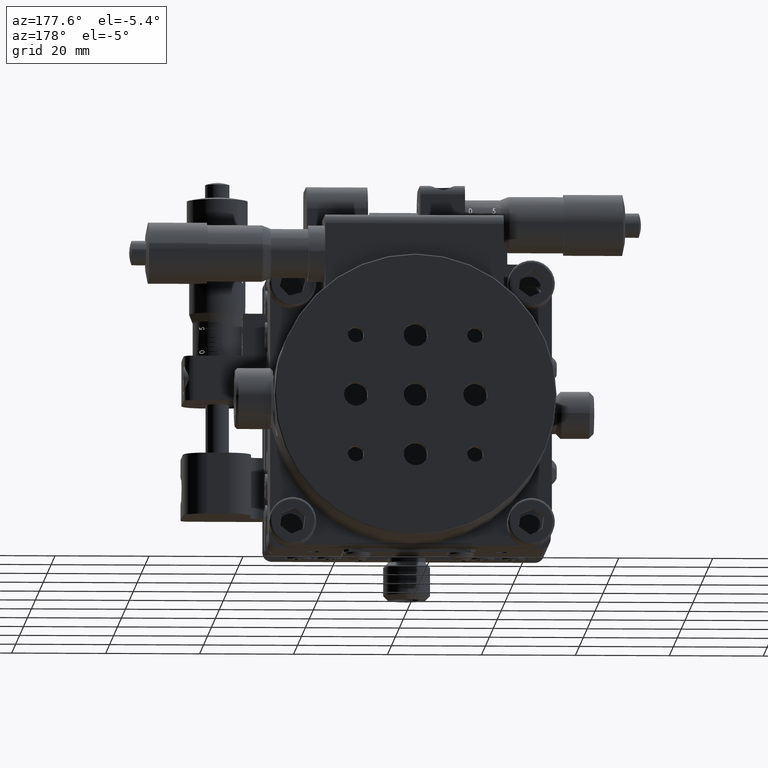
[diagram: clean part render]
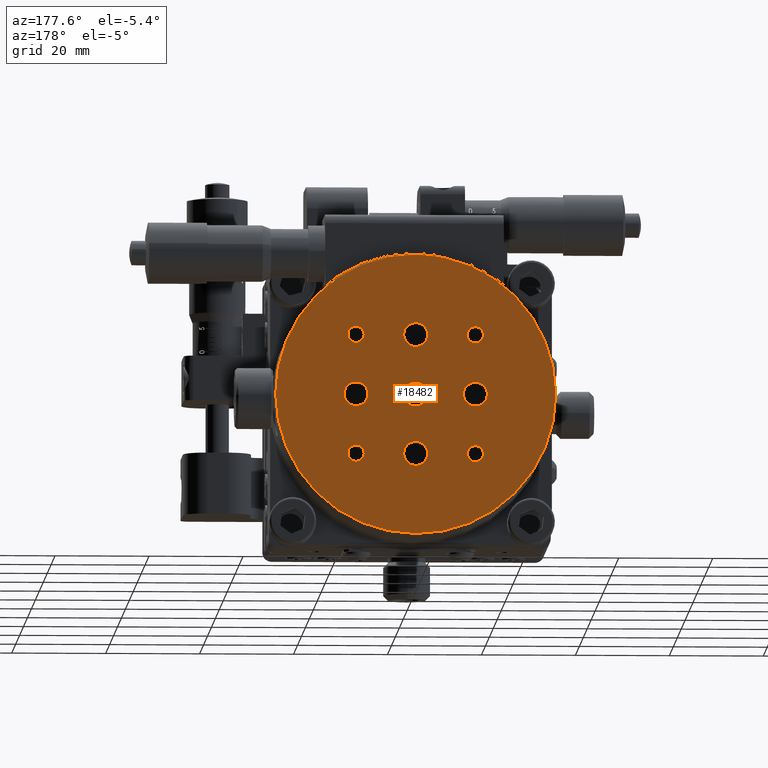
[diagram: same view with one face highlighted and labeled with its STEP entity id]
A machine part, auxiliary view. The second image highlights one B-rep face of the part: STEP entity #18482.
In plain terms, the highlighted planar face has unit normal (-0, 1, -0).
Its self-contained STEP definition (entity closure, byte-faithful):
#357 = EDGE_CURVE ( 'NONE', #52905, #52074, #23347, .T. ) ;
#415 = EDGE_LOOP ( 'NONE', ( #53570, #37065 ) ) ;
#1325 = DIRECTION ( 'NONE',  ( 1.000000000000000000, 0.000000000000000000, 5.551115123125702583E-17 ) ) ;
#1473 = CARTESIAN_POINT ( 'NONE',  ( -10.97279999999999234, 63.29999999999999716, -12.70000000000004015 ) ) ;
#1483 = DIRECTION ( 'NONE',  ( 1.000000000000000000, 0.000000000000000000, 0.000000000000000000 ) ) ;
#2166 = CARTESIAN_POINT ( 'NONE',  ( -1.398927747904535412E-15, 63.30000000000001137, 29.79999999999995808 ) ) ;
#2348 = DIRECTION ( 'NONE',  ( -8.231680313762278100E-17, 1.000000000000000000, -5.111182609384745175E-16 ) ) ;
#2370 = ORIENTED_EDGE ( 'NONE', *, *, #357, .F. ) ;
#2860 = VERTEX_POINT ( 'NONE', #53880 ) ;
#2918 = CIRCLE ( 'NONE', #30621, 1.727199999999999847 ) ;
#3033 = EDGE_CURVE ( 'NONE', #20765, #2860, #38507, .T. ) ;
#3035 = EDGE_CURVE ( 'NONE', #51558, #16003, #13556, .T. ) ;
#3350 = DIRECTION ( 'NONE',  ( 1.000000000000000000, 0.000000000000000000, 5.551115123125703816E-17 ) ) ;
#3809 = DIRECTION ( 'NONE',  ( 1.000000000000000000, 0.000000000000000000, 0.000000000000000000 ) ) ;
#3905 = EDGE_CURVE ( 'NONE', #50029, #48411, #13640, .T. ) ;
#4093 = DIRECTION ( 'NONE',  ( -8.231680313762278100E-17, 1.000000000000000000, -5.111182609384745175E-16 ) ) ;
#4897 = EDGE_LOOP ( 'NONE', ( #29115, #56242 ) ) ;
#5514 = EDGE_CURVE ( 'NONE', #51750, #18465, #6255, .T. ) ;
#5649 = DIRECTION ( 'NONE',  ( -8.231680313762278100E-17, 1.000000000000000000, -5.111182609384745175E-16 ) ) ;
#5808 = DIRECTION ( 'NONE',  ( -8.231680313762278100E-17, 1.000000000000000000, -5.111182609384745175E-16 ) ) ;
#6056 = ORIENTED_EDGE ( 'NONE', *, *, #32751, .F. ) ;
#6059 = CARTESIAN_POINT ( 'NONE',  ( 2.553045587869444710E-16, 63.29999999999999716, -3.603894781020724521E-14 ) ) ;
#6255 = CIRCLE ( 'NONE', #53356, 1.727199999999999847 ) ;
#6510 = FACE_BOUND ( 'NONE', #37598, .T. ) ;
#6789 = FACE_BOUND ( 'NONE', #415, .T. ) ;
#6876 = CARTESIAN_POINT ( 'NONE',  ( 9.602961794239182924E-16, 63.29999999999999716, -12.70000000000004725 ) ) ;
#6986 = CIRCLE ( 'NONE', #51323, 2.552699999999999747 ) ;
#7234 = CIRCLE ( 'NONE', #30307, 1.727199999999999847 ) ;
#7446 = CARTESIAN_POINT ( 'NONE',  ( -4.496870618500293504E-16, 63.30000000000001137, 12.69999999999995843 ) ) ;
#7626 = CIRCLE ( 'NONE', #40888, 2.552700000000000191 ) ;
#7652 = CARTESIAN_POINT ( 'NONE',  ( 2.553045587869444710E-16, 63.29999999999999716, -3.603894781020724521E-14 ) ) ;
#8242 = DIRECTION ( 'NONE',  ( 1.000000000000000000, 0.000000000000000000, 0.000000000000000000 ) ) ;
#8942 = CARTESIAN_POINT ( 'NONE',  ( -14.42720000000000269, 63.30000000000001137, 12.69999999999996909 ) ) ;
#9077 = CARTESIAN_POINT ( 'NONE',  ( 14.42720000000001335, 63.29999999999999716, -12.70000000000004725 ) ) ;
#9128 = VERTEX_POINT ( 'NONE', #37751 ) ;
#9385 = CARTESIAN_POINT ( 'NONE',  ( 10.97280000000001365, 63.29999999999999716, -12.70000000000004725 ) ) ;
#9497 = CARTESIAN_POINT ( 'NONE',  ( 12.70000000000000284, 63.30000000000001137, 12.69999999999995843 ) ) ;
#9819 = AXIS2_PLACEMENT_3D ( 'NONE', #34973, #26594, #39613 ) ;
#9970 = AXIS2_PLACEMENT_3D ( 'NONE', #2166, #54819, #20363 ) ;
#10161 = DIRECTION ( 'NONE',  ( -8.231680313762278100E-17, 1.000000000000000000, -5.111182609384745175E-16 ) ) ;
#10584 = CARTESIAN_POINT ( 'NONE',  ( -10.14730000000000310, 63.29999999999999716, -3.660223611509619256E-14 ) ) ;
#10982 = DIRECTION ( 'NONE',  ( 8.231680313762278100E-17, -1.000000000000000000, 5.111182609384745175E-16 ) ) ;
#11243 = EDGE_CURVE ( 'NONE', #45249, #36872, #2918, .T. ) ;
#11270 = CARTESIAN_POINT ( 'NONE',  ( 2.552700000000000635, 63.29999999999999716, -3.589724449445921563E-14 ) ) ;
#11419 = CIRCLE ( 'NONE', #28959, 29.79999999999999361 ) ;
#11724 = FACE_BOUND ( 'NONE', #55663, .T. ) ;
#11904 = CARTESIAN_POINT ( 'NONE',  ( -2.552700000000000191, 63.30000000000001137, 12.69999999999995843 ) ) ;
#12171 = CIRCLE ( 'NONE', #23226, 2.552699999999999747 ) ;
#12296 = AXIS2_PLACEMENT_3D ( 'NONE', #49790, #10161, #1483 ) ;
#12494 = DIRECTION ( 'NONE',  ( -8.231680313762278100E-17, 1.000000000000000000, -5.111182609384745175E-16 ) ) ;
#12508 = EDGE_CURVE ( 'NONE', #38634, #9128, #7626, .T. ) ;
#12524 = AXIS2_PLACEMENT_3D ( 'NONE', #16058, #29387, #8242 ) ;
#12711 = CARTESIAN_POINT ( 'NONE',  ( -14.42719999999999203, 63.29999999999999716, -12.70000000000003837 ) ) ;
#12714 = VERTEX_POINT ( 'NONE', #11270 ) ;
#13516 = CARTESIAN_POINT ( 'NONE',  ( -12.70000000000000284, 63.29999999999999716, -3.674393943084422213E-14 ) ) ;
#13556 = CIRCLE ( 'NONE', #45930, 1.727199999999999847 ) ;
#13640 = CIRCLE ( 'NONE', #55232, 2.552700000000000191 ) ;
#14431 = VERTEX_POINT ( 'NONE', #26109 ) ;
#14919 = FACE_BOUND ( 'NONE', #38126, .T. ) ;
#16003 = VERTEX_POINT ( 'NONE', #8942 ) ;
#16058 = CARTESIAN_POINT ( 'NONE',  ( -12.69999999999999218, 63.29999999999999716, -12.70000000000004015 ) ) ;
#17684 = CIRCLE ( 'NONE', #56530, 2.552700000000000191 ) ;
#18427 = EDGE_CURVE ( 'NONE', #12714, #34561, #33953, .T. ) ;
#18465 = VERTEX_POINT ( 'NONE', #12711 ) ;
#18472 = DIRECTION ( 'NONE',  ( -8.231680313762278100E-17, 1.000000000000000000, -5.111182609384745175E-16 ) ) ;
#18482 = ADVANCED_FACE ( 'NONE', ( #11724, #6789, #14919, #51327, #6510, #24134, #32551, #50488, #28787, #20652 ), #41811, .T. ) ;
#18795 = CIRCLE ( 'NONE', #37284, 1.727199999999999847 ) ;
#18865 = DIRECTION ( 'NONE',  ( -8.231680313762278100E-17, 1.000000000000000000, -5.111182609384745175E-16 ) ) ;
#19105 = EDGE_LOOP ( 'NONE', ( #25453, #32793 ) ) ;
#19937 = CARTESIAN_POINT ( 'NONE',  ( 10.14730000000000310, 63.29999999999999716, -3.463825900662508335E-14 ) ) ;
#20041 = ORIENTED_EDGE ( 'NONE', *, *, #41181, .F. ) ;
#20127 = ORIENTED_EDGE ( 'NONE', *, *, #43282, .F. ) ;
#20363 = DIRECTION ( 'NONE',  ( 1.000000000000000000, 8.231680313762278100E-17, 5.551115123125783935E-17 ) ) ;
#20570 = CARTESIAN_POINT ( 'NONE',  ( -2.552699999999999303, 63.29999999999999716, -3.534325062726205396E-14 ) ) ;
#20652 = FACE_OUTER_BOUND ( 'NONE', #48111, .T. ) ;
#20765 = VERTEX_POINT ( 'NONE', #33038 ) ;
#21813 = CIRCLE ( 'NONE', #9819, 2.552700000000000191 ) ;
#21835 = CARTESIAN_POINT ( 'NONE',  ( 12.70000000000000284, 63.29999999999999716, -3.533395618957026828E-14 ) ) ;
#22563 = DIRECTION ( 'NONE',  ( 1.000000000000000000, 0.000000000000000000, 0.000000000000000000 ) ) ;
#22587 = CARTESIAN_POINT ( 'NONE',  ( -10.97280000000000300, 63.30000000000001137, 12.69999999999996732 ) ) ;
#23226 = AXIS2_PLACEMENT_3D ( 'NONE', #21835, #26176, #3350 ) ;
#23304 = EDGE_CURVE ( 'NONE', #14431, #47445, #12171, .T. ) ;
#23347 = CIRCLE ( 'NONE', #27997, 29.79999999999999361 ) ;
#23706 = CARTESIAN_POINT ( 'NONE',  ( 9.602961794239182924E-16, 63.29999999999999716, -12.70000000000004725 ) ) ;
#23724 = EDGE_CURVE ( 'NONE', #9128, #38634, #17684, .T. ) ;
#23783 = AXIS2_PLACEMENT_3D ( 'NONE', #25988, #5649, #1325 ) ;
#24134 = FACE_BOUND ( 'NONE', #4897, .T. ) ;
#24453 = CARTESIAN_POINT ( 'NONE',  ( -15.25270000000000259, 63.29999999999999716, -3.604824224789903089E-14 ) ) ;
#24913 = EDGE_CURVE ( 'NONE', #2860, #20765, #55701, .T. ) ;
#24943 = EDGE_LOOP ( 'NONE', ( #46332, #55030 ) ) ;
#25453 = ORIENTED_EDGE ( 'NONE', *, *, #3033, .F. ) ;
#25988 = CARTESIAN_POINT ( 'NONE',  ( 2.553045587869444710E-16, 63.29999999999999716, -3.603894781020724521E-14 ) ) ;
#26109 = CARTESIAN_POINT ( 'NONE',  ( 15.25270000000000259, 63.29999999999999716, -3.519225287382223871E-14 ) ) ;
#26176 = DIRECTION ( 'NONE',  ( -8.231680313762278100E-17, 1.000000000000000000, -5.111182609384745175E-16 ) ) ;
#26594 = DIRECTION ( 'NONE',  ( -8.231680313762278100E-17, 1.000000000000000000, -5.111182609384745175E-16 ) ) ;
#27247 = DIRECTION ( 'NONE',  ( 1.000000000000000000, 0.000000000000000000, 0.000000000000000000 ) ) ;
#27997 = AXIS2_PLACEMENT_3D ( 'NONE', #7652, #33701, #51337 ) ;
#28193 = AXIS2_PLACEMENT_3D ( 'NONE', #44846, #18472, #35269 ) ;
#28409 = CIRCLE ( 'NONE', #55176, 2.552699999999999747 ) ;
#28787 = FACE_BOUND ( 'NONE', #55377, .T. ) ;
#28959 = AXIS2_PLACEMENT_3D ( 'NONE', #6059, #10982, #40783 ) ;
#29115 = ORIENTED_EDGE ( 'NONE', *, *, #23724, .F. ) ;
#29387 = DIRECTION ( 'NONE',  ( -8.231680313762278100E-17, 1.000000000000000000, -5.111182609384745175E-16 ) ) ;
#29434 = DIRECTION ( 'NONE',  ( -8.231680313762278100E-17, 1.000000000000000000, -5.111182609384745175E-16 ) ) ;
#30169 = ORIENTED_EDGE ( 'NONE', *, *, #18427, .F. ) ;
#30307 = AXIS2_PLACEMENT_3D ( 'NONE', #34180, #4093, #3809 ) ;
#30559 = EDGE_CURVE ( 'NONE', #34561, #12714, #21813, .T. ) ;
#30621 = AXIS2_PLACEMENT_3D ( 'NONE', #49797, #5808, #27247 ) ;
#31102 = AXIS2_PLACEMENT_3D ( 'NONE', #9497, #42605, #48863 ) ;
#31161 = DIRECTION ( 'NONE',  ( -8.231680313762278100E-17, 1.000000000000000000, -5.111182609384745175E-16 ) ) ;
#31329 = ORIENTED_EDGE ( 'NONE', *, *, #54775, .F. ) ;
#32191 = CARTESIAN_POINT ( 'NONE',  ( -12.70000000000000284, 63.29999999999999716, -3.674393943084422213E-14 ) ) ;
#32551 = FACE_BOUND ( 'NONE', #24943, .T. ) ;
#32751 = EDGE_CURVE ( 'NONE', #36872, #45249, #18795, .T. ) ;
#32793 = ORIENTED_EDGE ( 'NONE', *, *, #24913, .F. ) ;
#33012 = CARTESIAN_POINT ( 'NONE',  ( 12.70000000000001350, 63.29999999999999716, -12.70000000000004725 ) ) ;
#33038 = CARTESIAN_POINT ( 'NONE',  ( 14.42720000000000269, 63.30000000000001137, 12.69999999999995843 ) ) ;
#33168 = CARTESIAN_POINT ( 'NONE',  ( -29.79999999999999361, 63.29999999999999716, -3.769318011689873224E-14 ) ) ;
#33485 = DIRECTION ( 'NONE',  ( -8.231680313762278100E-17, 1.000000000000000000, -5.111182609384745175E-16 ) ) ;
#33701 = DIRECTION ( 'NONE',  ( 8.231680313762278100E-17, -1.000000000000000000, 5.111182609384745175E-16 ) ) ;
#33953 = CIRCLE ( 'NONE', #23783, 2.552700000000000191 ) ;
#34180 = CARTESIAN_POINT ( 'NONE',  ( -12.70000000000000284, 63.30000000000001137, 12.69999999999996732 ) ) ;
#34561 = VERTEX_POINT ( 'NONE', #20570 ) ;
#34973 = CARTESIAN_POINT ( 'NONE',  ( 2.553045587869444710E-16, 63.29999999999999716, -3.603894781020724521E-14 ) ) ;
#35269 = DIRECTION ( 'NONE',  ( 1.000000000000000000, 0.000000000000000000, 5.551115123125703816E-17 ) ) ;
#35921 = EDGE_LOOP ( 'NONE', ( #45009, #41451 ) ) ;
#35932 = ORIENTED_EDGE ( 'NONE', *, *, #30559, .F. ) ;
#36524 = EDGE_CURVE ( 'NONE', #47445, #14431, #42080, .T. ) ;
#36587 = CARTESIAN_POINT ( 'NONE',  ( -4.496870618500293504E-16, 63.30000000000001137, 12.69999999999995843 ) ) ;
#36872 = VERTEX_POINT ( 'NONE', #9385 ) ;
#37065 = ORIENTED_EDGE ( 'NONE', *, *, #42901, .F. ) ;
#37166 = DIRECTION ( 'NONE',  ( -8.231680313762278100E-17, 1.000000000000000000, -5.111182609384745175E-16 ) ) ;
#37284 = AXIS2_PLACEMENT_3D ( 'NONE', #33012, #2348, #37655 ) ;
#37481 = CIRCLE ( 'NONE', #12524, 1.727199999999999847 ) ;
#37598 = EDGE_LOOP ( 'NONE', ( #37630, #31329 ) ) ;
#37630 = ORIENTED_EDGE ( 'NONE', *, *, #3905, .F. ) ;
#37655 = DIRECTION ( 'NONE',  ( 1.000000000000000000, 0.000000000000000000, 0.000000000000000000 ) ) ;
#37751 = CARTESIAN_POINT ( 'NONE',  ( 2.552700000000001079, 63.29999999999999716, -12.70000000000004725 ) ) ;
#38126 = EDGE_LOOP ( 'NONE', ( #51123, #6056 ) ) ;
#38507 = CIRCLE ( 'NONE', #31102, 1.727199999999999847 ) ;
#38537 = DIRECTION ( 'NONE',  ( 1.000000000000000000, 0.000000000000000000, 0.000000000000000000 ) ) ;
#38634 = VERTEX_POINT ( 'NONE', #48811 ) ;
#39613 = DIRECTION ( 'NONE',  ( 1.000000000000000000, 0.000000000000000000, 5.551115123125702583E-17 ) ) ;
#39771 = DIRECTION ( 'NONE',  ( 1.000000000000000000, 0.000000000000000000, 0.000000000000000000 ) ) ;
#39796 = CARTESIAN_POINT ( 'NONE',  ( 2.552699999999999747, 63.30000000000001137, 12.69999999999995843 ) ) ;
#39871 = EDGE_CURVE ( 'NONE', #46069, #42810, #28409, .T. ) ;
#40536 = ORIENTED_EDGE ( 'NONE', *, *, #3035, .F. ) ;
#40783 = DIRECTION ( 'NONE',  ( -1.000000000000000000, 0.000000000000000000, -5.551115123125792563E-17 ) ) ;
#40888 = AXIS2_PLACEMENT_3D ( 'NONE', #23706, #53516, #22563 ) ;
#41181 = EDGE_CURVE ( 'NONE', #16003, #51558, #7234, .T. ) ;
#41451 = ORIENTED_EDGE ( 'NONE', *, *, #36524, .F. ) ;
#41811 = PLANE ( 'NONE',  #9970 ) ;
#42036 = CIRCLE ( 'NONE', #43887, 2.552700000000000191 ) ;
#42080 = CIRCLE ( 'NONE', #28193, 2.552699999999999747 ) ;
#42605 = DIRECTION ( 'NONE',  ( -8.231680313762278100E-17, 1.000000000000000000, -5.111182609384745175E-16 ) ) ;
#42648 = EDGE_CURVE ( 'NONE', #42810, #46069, #6986, .T. ) ;
#42810 = VERTEX_POINT ( 'NONE', #24453 ) ;
#42901 = EDGE_CURVE ( 'NONE', #18465, #51750, #37481, .T. ) ;
#43282 = EDGE_CURVE ( 'NONE', #52074, #52905, #11419, .T. ) ;
#43887 = AXIS2_PLACEMENT_3D ( 'NONE', #7446, #29434, #47090 ) ;
#44846 = CARTESIAN_POINT ( 'NONE',  ( 12.70000000000000284, 63.29999999999999716, -3.533395618957026828E-14 ) ) ;
#45009 = ORIENTED_EDGE ( 'NONE', *, *, #23304, .F. ) ;
#45249 = VERTEX_POINT ( 'NONE', #9077 ) ;
#45573 = DIRECTION ( 'NONE',  ( 1.000000000000000000, 0.000000000000000000, 0.000000000000000000 ) ) ;
#45930 = AXIS2_PLACEMENT_3D ( 'NONE', #53464, #12494, #38537 ) ;
#46069 = VERTEX_POINT ( 'NONE', #10584 ) ;
#46332 = ORIENTED_EDGE ( 'NONE', *, *, #39871, .F. ) ;
#47090 = DIRECTION ( 'NONE',  ( 1.000000000000000000, 0.000000000000000000, 0.000000000000000000 ) ) ;
#47445 = VERTEX_POINT ( 'NONE', #19937 ) ;
#48111 = EDGE_LOOP ( 'NONE', ( #2370, #20127 ) ) ;
#48276 = CARTESIAN_POINT ( 'NONE',  ( 29.79999999999998650, 63.29999999999999716, -3.798974649174933132E-14 ) ) ;
#48411 = VERTEX_POINT ( 'NONE', #11904 ) ;
#48811 = CARTESIAN_POINT ( 'NONE',  ( -2.552699999999998859, 63.29999999999999716, -12.70000000000004725 ) ) ;
#48821 = DIRECTION ( 'NONE',  ( 1.000000000000000000, 0.000000000000000000, 5.551115123125703816E-17 ) ) ;
#48863 = DIRECTION ( 'NONE',  ( 1.000000000000000000, 0.000000000000000000, 0.000000000000000000 ) ) ;
#49790 = CARTESIAN_POINT ( 'NONE',  ( 12.70000000000000284, 63.30000000000001137, 12.69999999999995843 ) ) ;
#49797 = CARTESIAN_POINT ( 'NONE',  ( 12.70000000000001350, 63.29999999999999716, -12.70000000000004725 ) ) ;
#50029 = VERTEX_POINT ( 'NONE', #39796 ) ;
#50488 = FACE_BOUND ( 'NONE', #35921, .T. ) ;
#50850 = DIRECTION ( 'NONE',  ( 1.000000000000000000, 0.000000000000000000, 0.000000000000000000 ) ) ;
#51123 = ORIENTED_EDGE ( 'NONE', *, *, #11243, .F. ) ;
#51323 = AXIS2_PLACEMENT_3D ( 'NONE', #13516, #31161, #48821 ) ;
#51327 = FACE_BOUND ( 'NONE', #19105, .T. ) ;
#51337 = DIRECTION ( 'NONE',  ( -1.000000000000000000, 0.000000000000000000, -5.551115123125792563E-17 ) ) ;
#51558 = VERTEX_POINT ( 'NONE', #22587 ) ;
#51750 = VERTEX_POINT ( 'NONE', #1473 ) ;
#52074 = VERTEX_POINT ( 'NONE', #48276 ) ;
#52905 = VERTEX_POINT ( 'NONE', #33168 ) ;
#53356 = AXIS2_PLACEMENT_3D ( 'NONE', #55096, #37166, #45573 ) ;
#53464 = CARTESIAN_POINT ( 'NONE',  ( -12.70000000000000284, 63.30000000000001137, 12.69999999999996732 ) ) ;
#53516 = DIRECTION ( 'NONE',  ( -8.231680313762278100E-17, 1.000000000000000000, -5.111182609384745175E-16 ) ) ;
#53570 = ORIENTED_EDGE ( 'NONE', *, *, #5514, .F. ) ;
#53880 = CARTESIAN_POINT ( 'NONE',  ( 10.97280000000000300, 63.30000000000001137, 12.69999999999995843 ) ) ;
#54176 = DIRECTION ( 'NONE',  ( 1.000000000000000000, 0.000000000000000000, 5.551115123125703816E-17 ) ) ;
#54219 = DIRECTION ( 'NONE',  ( -8.231680313762278100E-17, 1.000000000000000000, -5.111182609384745175E-16 ) ) ;
#54775 = EDGE_CURVE ( 'NONE', #48411, #50029, #42036, .T. ) ;
#54819 = DIRECTION ( 'NONE',  ( -8.231680313762275635E-17, 1.000000000000000000, -5.111182609384745175E-16 ) ) ;
#55030 = ORIENTED_EDGE ( 'NONE', *, *, #42648, .F. ) ;
#55096 = CARTESIAN_POINT ( 'NONE',  ( -12.69999999999999218, 63.29999999999999716, -12.70000000000004015 ) ) ;
#55176 = AXIS2_PLACEMENT_3D ( 'NONE', #32191, #18865, #54176 ) ;
#55232 = AXIS2_PLACEMENT_3D ( 'NONE', #36587, #54219, #39771 ) ;
#55377 = EDGE_LOOP ( 'NONE', ( #30169, #35932 ) ) ;
#55663 = EDGE_LOOP ( 'NONE', ( #40536, #20041 ) ) ;
#55701 = CIRCLE ( 'NONE', #12296, 1.727199999999999847 ) ;
#56242 = ORIENTED_EDGE ( 'NONE', *, *, #12508, .F. ) ;
#56530 = AXIS2_PLACEMENT_3D ( 'NONE', #6876, #33485, #50850 ) ;